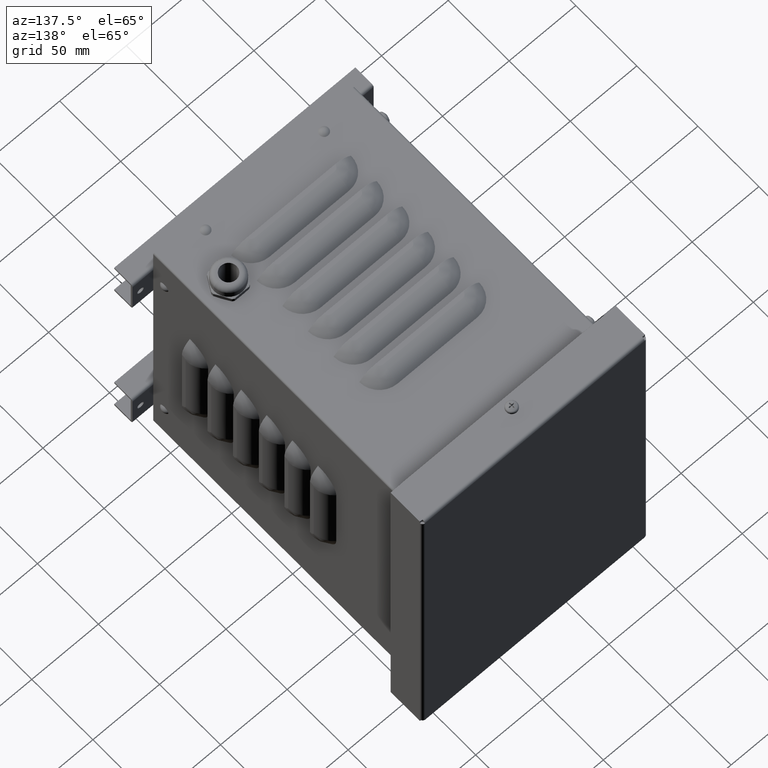
[diagram: clean part render]
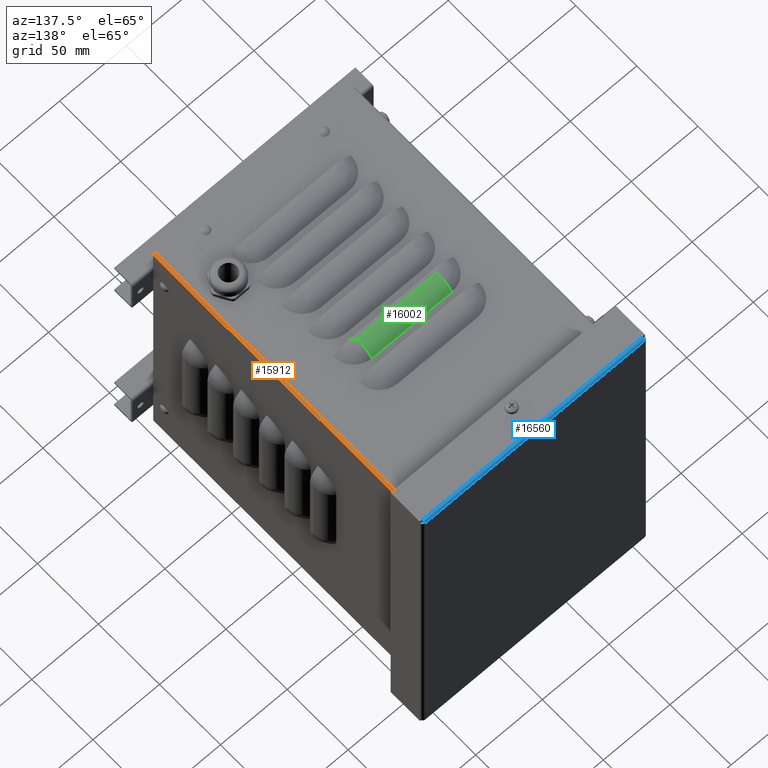
[diagram: same view with three faces highlighted in distinct colors, each labeled with its STEP entity id]
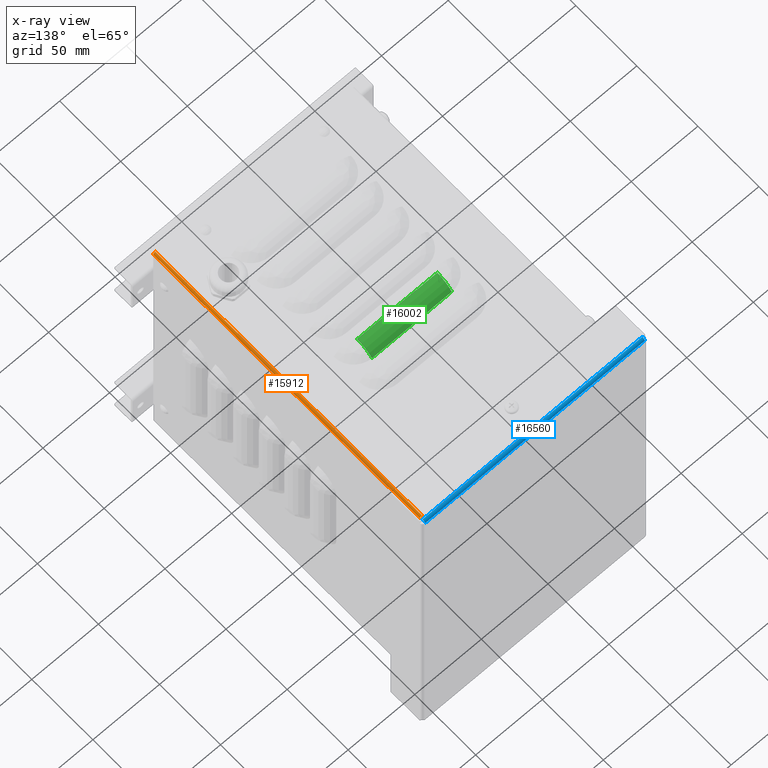
[diagram: x-ray of the same camera — body ghosted, the three highlighted faces saturated]
A machine part, auxiliary view with three faces highlighted in distinct colors.
The next image is the same camera in x-ray (body ghosted, the three faces saturated) — at least one of them is partly hidden behind the body in this view.
Their STEP definitions:

[orange] entity #15912 — the highlighted cylindrical surface (edge-blend (fillet) strip) has radius 1.501 mm, axis along (0, 1, -0).
#1932=FACE_OUTER_BOUND('',#2782,.T.);
#2782=EDGE_LOOP('',(#11338,#11339,#11340,#11341));
#3904=LINE('',#23002,#5457);
#3905=LINE('',#23005,#5458);
#5457=VECTOR('',#18566,10.);
#5458=VECTOR('',#18569,10.);
#6952=CIRCLE('',#17012,1.50099999999998);
#6954=CIRCLE('',#17015,1.50099999999998);
#7624=VERTEX_POINT('',#22974);
#7628=VERTEX_POINT('',#22994);
#7629=VERTEX_POINT('',#23001);
#7630=VERTEX_POINT('',#23003);
#9048=EDGE_CURVE('',#7628,#7624,#6952,.T.);
#9050=EDGE_CURVE('',#7629,#7624,#3904,.T.);
#9051=EDGE_CURVE('',#7629,#7630,#6954,.T.);
#9052=EDGE_CURVE('',#7628,#7630,#3905,.T.);
#11338=ORIENTED_EDGE('',*,*,#9048,.T.);
#11339=ORIENTED_EDGE('',*,*,#9050,.F.);
#11340=ORIENTED_EDGE('',*,*,#9051,.T.);
#11341=ORIENTED_EDGE('',*,*,#9052,.F.);
#15686=CYLINDRICAL_SURFACE('',#17014,1.50099999999998);
#15912=ADVANCED_FACE('',(#1932),#15686,.T.);
#17012=AXIS2_PLACEMENT_3D('',#22998,#18560,#18561);
#17014=AXIS2_PLACEMENT_3D('',#23000,#18564,#18565);
#17015=AXIS2_PLACEMENT_3D('',#23004,#18567,#18568);
#18560=DIRECTION('center_axis',(-2.75493226546897E-26,-1.,-4.4062102896955E-28));
#18561=DIRECTION('ref_axis',(-5.50107055013745E-15,-3.23491557291712E-18,
1.));
#18564=DIRECTION('center_axis',(-1.77954987903554E-32,1.,3.23491557291712E-18));
#18565=DIRECTION('ref_axis',(-5.50107055013745E-15,-3.23491557291712E-18,
1.));
#18566=DIRECTION('',(0.,1.,3.23491557291712E-18));
#18567=DIRECTION('center_axis',(-1.77954987903554E-32,1.,3.23491557291712E-18));
#18568=DIRECTION('ref_axis',(0.,0.,1.));
#18569=DIRECTION('',(3.23491557291701E-18,-1.,-3.23491557291718E-18));
#22974=CARTESIAN_POINT('',(149.498999999999,218.499000000002,219.999999999998));
#22994=CARTESIAN_POINT('',(150.999999999999,218.499000000002,218.498999999998));
#22998=CARTESIAN_POINT('Origin',(149.499,218.499000000002,218.499000000001));
#23000=CARTESIAN_POINT('Origin',(149.499,110.,218.499000000001));
#23001=CARTESIAN_POINT('',(149.499,1.01280238130186E-11,220.000000000001));
#23002=CARTESIAN_POINT('',(149.499,165.,220.000000000001));
#23003=CARTESIAN_POINT('',(151.,1.19865687038013E-15,218.499000000001));
#23004=CARTESIAN_POINT('Origin',(149.499,-7.105427357601E-14,218.499000000001));
#23005=CARTESIAN_POINT('',(151.,110.,218.499000000001));

[blue] entity #16560 — the highlighted cylindrical surface (edge-blend (fillet) strip) has radius 2 mm, axis along (1, 0, 0).
#2580=FACE_OUTER_BOUND('',#3620,.T.);
#3620=EDGE_LOOP('',(#14824,#14825,#14826,#14827));
#5207=LINE('',#27033,#6760);
#5208=LINE('',#27035,#6761);
#6760=VECTOR('',#21881,10.);
#6761=VECTOR('',#21884,10.);
#7381=CIRCLE('',#18021,2.00000000000001);
#7382=CIRCLE('',#18022,1.99999999999999);
#8673=VERTEX_POINT('',#26938);
#8686=VERTEX_POINT('',#26987);
#8697=VERTEX_POINT('',#27031);
#8698=VERTEX_POINT('',#27032);
#10780=EDGE_CURVE('',#8697,#8698,#5207,.T.);
#10781=EDGE_CURVE('',#8686,#8697,#7381,.T.);
#10782=EDGE_CURVE('',#8673,#8686,#5208,.T.);
#10783=EDGE_CURVE('',#8698,#8673,#7382,.T.);
#14824=ORIENTED_EDGE('',*,*,#10780,.F.);
#14825=ORIENTED_EDGE('',*,*,#10781,.F.);
#14826=ORIENTED_EDGE('',*,*,#10782,.F.);
#14827=ORIENTED_EDGE('',*,*,#10783,.F.);
#15828=CYLINDRICAL_SURFACE('',#18020,2.00000000000001);
#16560=ADVANCED_FACE('',(#2580),#15828,.T.);
#18020=AXIS2_PLACEMENT_3D('',#27030,#21879,#21880);
#18021=AXIS2_PLACEMENT_3D('',#27034,#21882,#21883);
#18022=AXIS2_PLACEMENT_3D('',#27036,#21885,#21886);
#21879=DIRECTION('center_axis',(-1.,0.,0.));
#21880=DIRECTION('ref_axis',(0.,-1.,0.));
#21881=DIRECTION('',(1.,-3.23202604239202E-32,-1.40331248647522E-18));
#21882=DIRECTION('center_axis',(-1.,0.,0.));
#21883=DIRECTION('ref_axis',(0.,-1.,0.));
#21884=DIRECTION('',(-1.,0.,0.));
#21885=DIRECTION('center_axis',(1.,0.,0.));
#21886=DIRECTION('ref_axis',(0.,2.30371277609721E-14,1.));
#26938=CARTESIAN_POINT('',(-1.99999999999994,-2.77555756156289E-16,259.));
#26987=CARTESIAN_POINT('',(-167.,-2.77555756156289E-16,259.));
#27030=CARTESIAN_POINT('Origin',(-84.4999999999999,2.,259.));
#27031=CARTESIAN_POINT('',(-167.,2.00000000000006,261.));
#27032=CARTESIAN_POINT('',(-1.99999999999992,2.00000000000006,261.));
#27033=CARTESIAN_POINT('',(-84.8714902658707,2.00000000000006,261.));
#27034=CARTESIAN_POINT('Origin',(-167.,2.,259.));
#27035=CARTESIAN_POINT('',(-43.25,0.,259.));
#27036=CARTESIAN_POINT('Origin',(-1.99999999999992,2.,259.));

[green] entity #16002 — the highlighted cylindrical surface (edge-blend (fillet) strip) has radius 15 mm, axis along (1, -0, -0).
#2022=FACE_OUTER_BOUND('',#2892,.T.);
#2892=EDGE_LOOP('',(#11853,#11854,#11855,#11856));
#4149=LINE('',#23770,#5702);
#4150=LINE('',#23771,#5703);
#5702=VECTOR('',#19145,10.);
#5703=VECTOR('',#19146,15.);
#7037=CIRCLE('',#17173,15.);
#7041=CIRCLE('',#17177,15.);
#7852=VERTEX_POINT('',#23744);
#7853=VERTEX_POINT('',#23745);
#7856=VERTEX_POINT('',#23761);
#7857=VERTEX_POINT('',#23762);
#9378=EDGE_CURVE('',#7852,#7853,#7037,.T.);
#9382=EDGE_CURVE('',#7856,#7857,#7041,.T.);
#9386=EDGE_CURVE('',#7853,#7856,#4149,.T.);
#9387=EDGE_CURVE('',#7857,#7852,#4150,.T.);
#11853=ORIENTED_EDGE('',*,*,#9382,.F.);
#11854=ORIENTED_EDGE('',*,*,#9386,.F.);
#11855=ORIENTED_EDGE('',*,*,#9378,.F.);
#11856=ORIENTED_EDGE('',*,*,#9387,.F.);
#15708=CYLINDRICAL_SURFACE('',#17181,15.);
#16002=ADVANCED_FACE('',(#2022),#15708,.T.);
#17173=AXIS2_PLACEMENT_3D('',#23746,#19127,#19128);
#17177=AXIS2_PLACEMENT_3D('',#23763,#19135,#19136);
#17181=AXIS2_PLACEMENT_3D('',#23769,#19143,#19144);
#19127=DIRECTION('center_axis',(-1.,-6.03530546199477E-20,1.10708719190885E-14));
#19128=DIRECTION('ref_axis',(6.64252315145307E-15,0.8,0.6));
#19135=DIRECTION('center_axis',(1.,6.03530546199477E-20,-1.10708719190885E-14));
#19136=DIRECTION('ref_axis',(6.64252315145307E-15,0.8,0.6));
#19143=DIRECTION('center_axis',(1.,-2.95999120178755E-16,-1.10708719190885E-14));
#19144=DIRECTION('ref_axis',(6.64252315145307E-15,0.8,0.6));
#19145=DIRECTION('',(1.,-2.95999120178755E-16,-1.10708719190885E-14));
#19146=DIRECTION('',(-1.,2.95999120178755E-16,1.10708719190885E-14));
#23744=CARTESIAN_POINT('',(45.0000000000026,117.000000000003,226.));
#23745=CARTESIAN_POINT('',(45.0000000000025,129.000000000003,219.999999999999));
#23746=CARTESIAN_POINT('Origin',(45.0000000000024,117.000000000003,211.));
#23761=CARTESIAN_POINT('',(105.000000000003,129.000000000003,219.999999999999));
#23762=CARTESIAN_POINT('',(105.000000000003,117.000000000003,225.999999999999));
#23763=CARTESIAN_POINT('Origin',(105.000000000002,117.000000000003,210.999999999999));
#23769=CARTESIAN_POINT('Origin',(45.0000000000024,117.000000000003,211.));
#23770=CARTESIAN_POINT('',(45.0000000000025,129.000000000002,220.));
#23771=CARTESIAN_POINT('',(45.0000000000026,117.000000000003,226.));